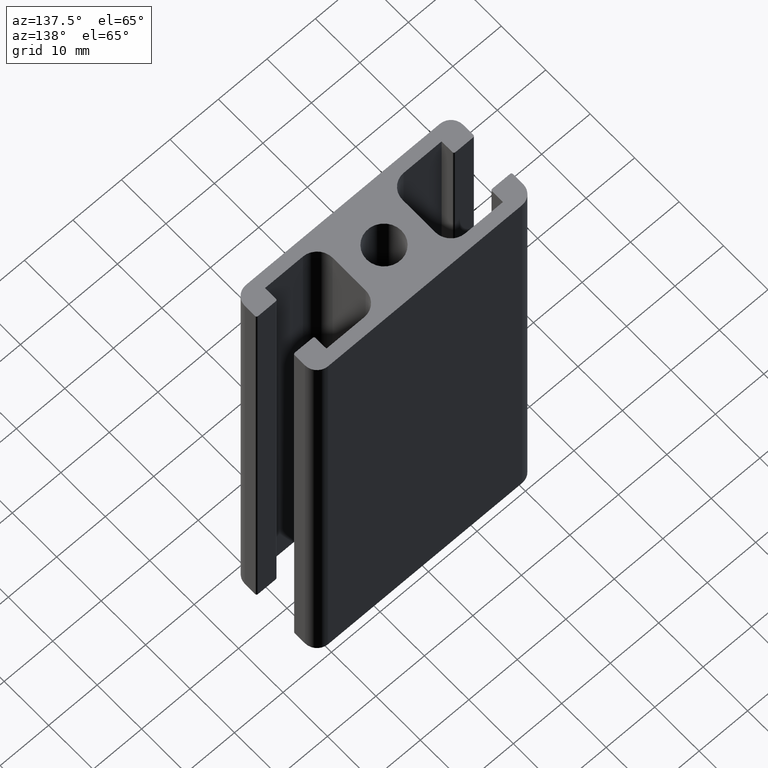
[diagram: clean part render]
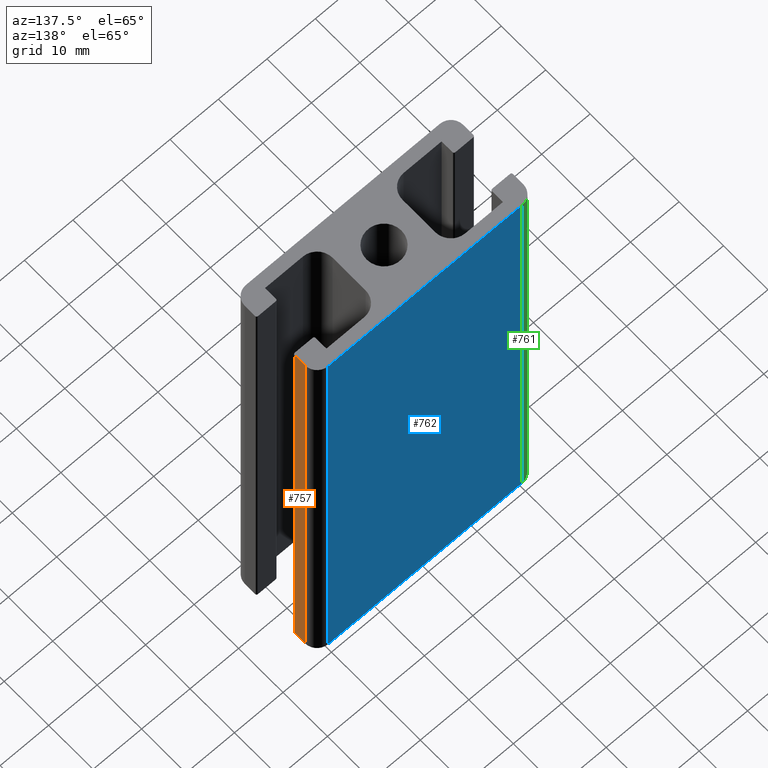
[diagram: same view with three faces highlighted in distinct colors, each labeled with its STEP entity id]
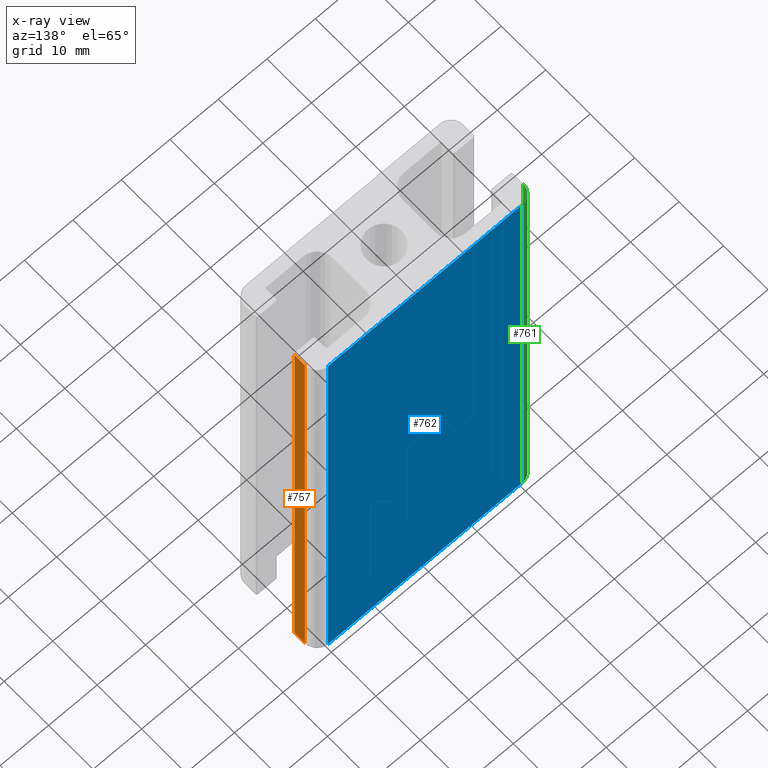
[diagram: x-ray of the same camera — body ghosted, the three highlighted faces saturated]
A machine part, auxiliary view with three faces highlighted in distinct colors.
The next image is the same camera in x-ray (body ghosted, the three faces saturated) — at least one of them is partly hidden behind the body in this view.
Their STEP definitions:

[orange] entity #757 — the highlighted planar face has unit normal (1, 0, 0).
#31=PLANE('',#824);
#83=LINE('',#1212,#159);
#99=LINE('',#1248,#175);
#100=LINE('',#1250,#176);
#101=LINE('',#1251,#177);
#159=VECTOR('',#984,100.);
#175=VECTOR('',#1018,2.3);
#176=VECTOR('',#1019,100.);
#177=VECTOR('',#1020,2.3);
#221=FACE_OUTER_BOUND('',#261,.T.);
#261=EDGE_LOOP('',(#605,#606,#607,#608));
#356=VERTEX_POINT('',#1206);
#358=VERTEX_POINT('',#1210);
#369=VERTEX_POINT('',#1247);
#370=VERTEX_POINT('',#1249);
#451=EDGE_CURVE('',#356,#358,#83,.T.);
#469=EDGE_CURVE('',#369,#358,#99,.T.);
#470=EDGE_CURVE('',#369,#370,#100,.T.);
#471=EDGE_CURVE('',#370,#356,#101,.T.);
#605=ORIENTED_EDGE('',*,*,#451,.T.);
#606=ORIENTED_EDGE('',*,*,#469,.F.);
#607=ORIENTED_EDGE('',*,*,#470,.T.);
#608=ORIENTED_EDGE('',*,*,#471,.T.);
#757=ADVANCED_FACE('',(#221),#31,.T.);
#824=AXIS2_PLACEMENT_3D('',#1246,#1016,#1017);
#984=DIRECTION('',(0.,0.,-1.));
#1016=DIRECTION('center_axis',(1.,0.,0.));
#1017=DIRECTION('ref_axis',(0.,1.,0.));
#1018=DIRECTION('',(0.,-1.,0.));
#1019=DIRECTION('',(0.,0.,1.));
#1020=DIRECTION('',(0.,-1.,0.));
#1206=CARTESIAN_POINT('',(22.49999999999,4.45,100.));
#1210=CARTESIAN_POINT('',(22.49999999999,4.45,0.));
#1212=CARTESIAN_POINT('',(22.5,4.4500000000006,0.));
#1246=CARTESIAN_POINT('Origin',(22.5,-6.75,0.));
#1247=CARTESIAN_POINT('',(22.5,6.75,0.));
#1248=CARTESIAN_POINT('',(22.5,-3.375,0.));
#1249=CARTESIAN_POINT('',(22.5,6.75,100.));
#1250=CARTESIAN_POINT('',(22.5,6.75,0.));
#1251=CARTESIAN_POINT('',(22.5,-3.375,100.));

[blue] entity #762 — the highlighted planar face has unit normal (0, 1, 0).
#34=PLANE('',#835);
#106=LINE('',#1267,#182);
#108=LINE('',#1275,#184);
#109=LINE('',#1279,#185);
#110=LINE('',#1280,#186);
#182=VECTOR('',#1035,40.);
#184=VECTOR('',#1045,100.);
#185=VECTOR('',#1050,100.);
#186=VECTOR('',#1051,40.);
#226=FACE_OUTER_BOUND('',#267,.T.);
#267=EDGE_LOOP('',(#658,#659,#660,#661));
#375=VERTEX_POINT('',#1264);
#376=VERTEX_POINT('',#1266);
#378=VERTEX_POINT('',#1274);
#379=VERTEX_POINT('',#1278);
#479=EDGE_CURVE('',#376,#375,#106,.T.);
#483=EDGE_CURVE('',#378,#376,#108,.T.);
#485=EDGE_CURVE('',#379,#375,#109,.T.);
#486=EDGE_CURVE('',#378,#379,#110,.T.);
#658=ORIENTED_EDGE('',*,*,#479,.T.);
#659=ORIENTED_EDGE('',*,*,#485,.F.);
#660=ORIENTED_EDGE('',*,*,#486,.F.);
#661=ORIENTED_EDGE('',*,*,#483,.T.);
#762=ADVANCED_FACE('',(#226),#34,.T.);
#835=AXIS2_PLACEMENT_3D('',#1277,#1048,#1049);
#1035=DIRECTION('',(1.,0.,0.));
#1045=DIRECTION('',(0.,0.,1.));
#1048=DIRECTION('center_axis',(0.,1.,0.));
#1049=DIRECTION('ref_axis',(-1.,0.,0.));
#1050=DIRECTION('',(0.,0.,1.));
#1051=DIRECTION('',(1.,0.,0.));
#1264=CARTESIAN_POINT('',(20.,9.25,100.));
#1266=CARTESIAN_POINT('',(-20.,9.25,100.));
#1267=CARTESIAN_POINT('',(10.,9.25,100.));
#1274=CARTESIAN_POINT('',(-20.,9.25,0.));
#1275=CARTESIAN_POINT('',(-20.,9.25,0.));
#1277=CARTESIAN_POINT('Origin',(20.,9.25,0.));
#1278=CARTESIAN_POINT('',(20.,9.25,0.));
#1279=CARTESIAN_POINT('',(20.,9.25,0.));
#1280=CARTESIAN_POINT('',(10.,9.25,0.));

[green] entity #761 — the highlighted cylindrical surface (edge-blend (fillet) strip) has radius 2.5 mm, axis along (0, 0, 1).
#97=LINE('',#1244,#173);
#108=LINE('',#1275,#184);
#173=VECTOR('',#1014,100.);
#184=VECTOR('',#1045,100.);
#225=FACE_OUTER_BOUND('',#266,.T.);
#266=EDGE_LOOP('',(#654,#655,#656,#657));
#302=CIRCLE('',#830,2.5);
#304=CIRCLE('',#834,2.5);
#367=VERTEX_POINT('',#1241);
#368=VERTEX_POINT('',#1243);
#376=VERTEX_POINT('',#1266);
#378=VERTEX_POINT('',#1274);
#467=EDGE_CURVE('',#368,#367,#97,.T.);
#480=EDGE_CURVE('',#367,#376,#302,.T.);
#483=EDGE_CURVE('',#378,#376,#108,.T.);
#484=EDGE_CURVE('',#368,#378,#304,.T.);
#654=ORIENTED_EDGE('',*,*,#480,.T.);
#655=ORIENTED_EDGE('',*,*,#483,.F.);
#656=ORIENTED_EDGE('',*,*,#484,.F.);
#657=ORIENTED_EDGE('',*,*,#467,.T.);
#725=CYLINDRICAL_SURFACE('',#833,2.5);
#761=ADVANCED_FACE('',(#225),#725,.T.);
#830=AXIS2_PLACEMENT_3D('',#1268,#1036,#1037);
#833=AXIS2_PLACEMENT_3D('',#1273,#1043,#1044);
#834=AXIS2_PLACEMENT_3D('',#1276,#1046,#1047);
#1014=DIRECTION('',(0.,0.,1.));
#1036=DIRECTION('center_axis',(0.,0.,-1.));
#1037=DIRECTION('ref_axis',(0.,-1.,0.));
#1043=DIRECTION('center_axis',(0.,0.,1.));
#1044=DIRECTION('ref_axis',(0.,-1.,0.));
#1045=DIRECTION('',(0.,0.,1.));
#1046=DIRECTION('center_axis',(0.,0.,-1.));
#1047=DIRECTION('ref_axis',(0.,-1.,0.));
#1241=CARTESIAN_POINT('',(-22.5,6.75,100.));
#1243=CARTESIAN_POINT('',(-22.5,6.75,0.));
#1244=CARTESIAN_POINT('',(-22.5,6.75,0.));
#1266=CARTESIAN_POINT('',(-20.,9.25,100.));
#1268=CARTESIAN_POINT('Origin',(-20.,6.75,100.));
#1273=CARTESIAN_POINT('Origin',(-20.,6.75,0.));
#1274=CARTESIAN_POINT('',(-20.,9.25,0.));
#1275=CARTESIAN_POINT('',(-20.,9.25,0.));
#1276=CARTESIAN_POINT('Origin',(-20.,6.75,0.));